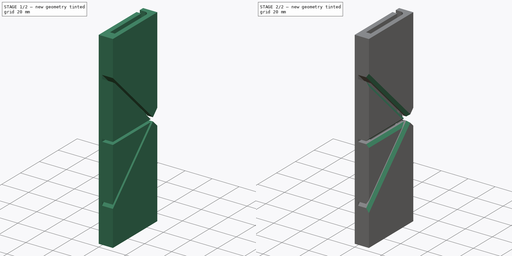
[diagram: build sequence overview — one tinted view per stage of 2, left to right]
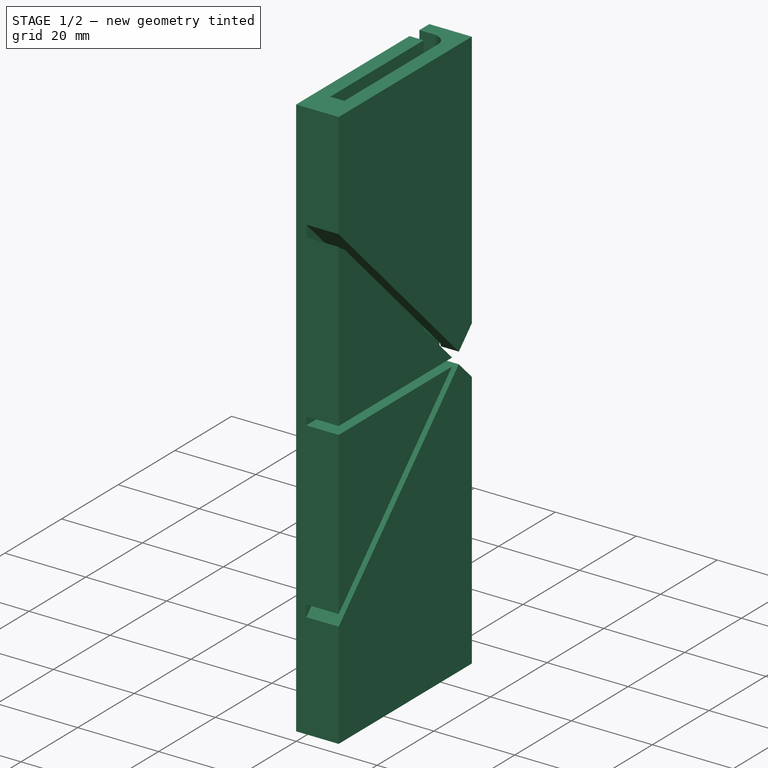
[diagram: stage 1 of 2 — iso view after this stage's code; geometry added in this stage tinted green]
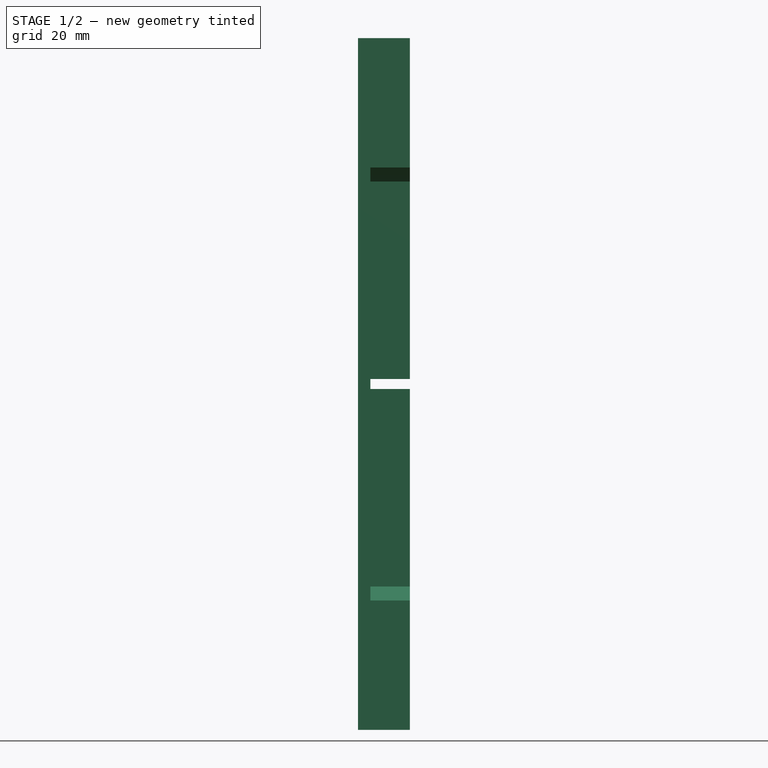
[diagram: stage 1 of 2 — front view after this stage's code; geometry added in this stage tinted green]
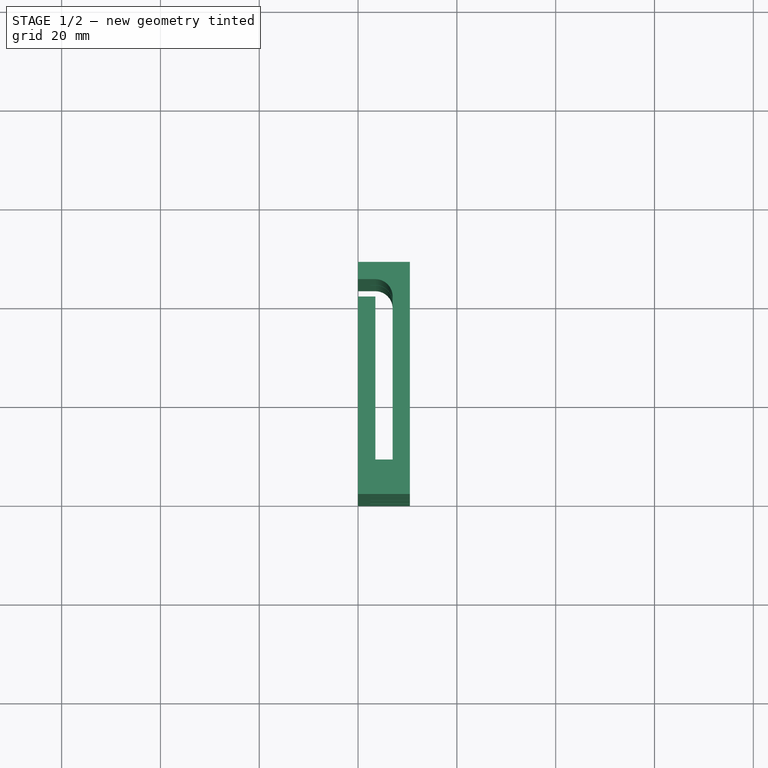
[diagram: stage 1 of 2 — top view after this stage's code; geometry added in this stage tinted green]
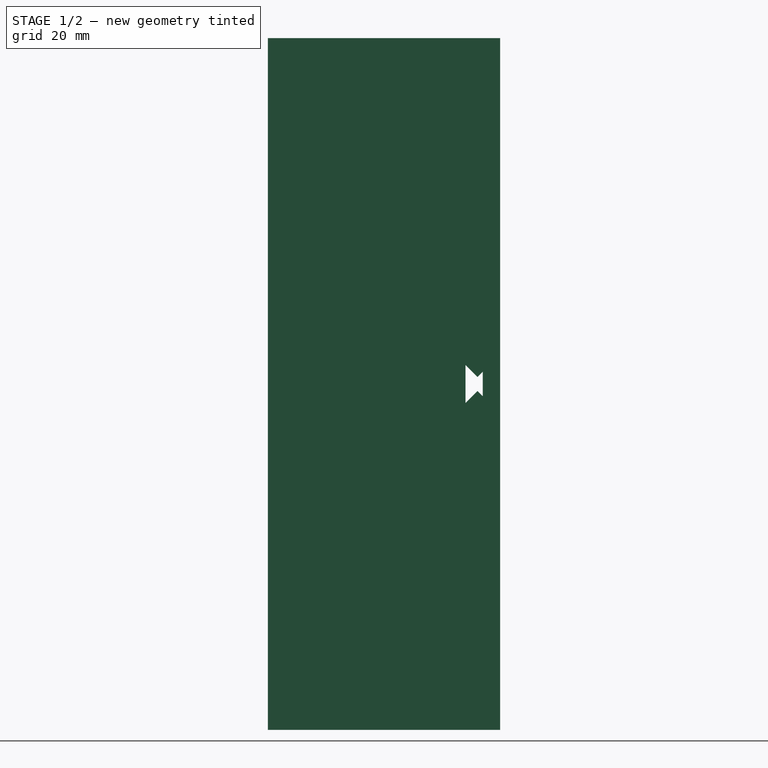
[diagram: stage 1 of 2 — right view after this stage's code; geometry added in this stage tinted green]
FCSTD DOCUMENT  (FreeCAD 0.18R16131 (Git))
Label: CardboardProtectionJig
License: All rights reserved
LicenseURL: http://en.wikipedia.org/wiki/All_rights_reserved
objects: Sketcher::SketchObject×2, PartDesign::Pad×1, PartDesign::Pocket×1, PartDesign::Chamfer×1, PartDesign::Body×1
note: 8 computed .brp shape members not serialized (recipe doc carries the construction recipe); baked Part::Feature solids carry a one-line shape summary decoded from their .brp

FEATURE [Sketcher::SketchObject] Sketch
  MapMode = 5
  Support = -> [XY_Plane]
  sketch-geometry (11):
    g0: LineSegment StartX=0 StartY=0 StartZ=0 EndX=0 EndY=40 EndZ=0
    g1: LineSegment StartX=0 StartY=40 StartZ=0 EndX=3.5 EndY=40 EndZ=0
    g2: LineSegment StartX=3.5 StartY=40 StartZ=0 EndX=3.5 EndY=7 EndZ=0
    g3: LineSegment StartX=3.5 StartY=7 StartZ=0 EndX=7 EndY=7 EndZ=0
    g4: LineSegment StartX=7 StartY=7 StartZ=0 EndX=7 EndY=40 EndZ=0
    g5: LineSegment StartX=10.5 StartY=47 StartZ=0 EndX=10.5 EndY=0 EndZ=0
    g6: LineSegment StartX=10.5 StartY=0 StartZ=0 EndX=0 EndY=0 EndZ=0
    g7: ArcOfCircle CenterX=3.5 CenterY=40 CenterZ=0 NormalX=0 NormalY=0 NormalZ=1 AngleXU=0 Radius=3.5 StartAngle=2e-16 EndAngle=1.5708
    g8: LineSegment StartX=10.5 StartY=47 StartZ=0 EndX=0 EndY=47 EndZ=0
    g9: LineSegment StartX=3.5 StartY=43.5 StartZ=0 EndX=0 EndY=43.5 EndZ=0
    g10: LineSegment StartX=0 StartY=43.5 StartZ=0 EndX=0 EndY=47 EndZ=0
  constraints (30):
    c: Coincident(g0,g-1)
    c: PointOnObject(g0,g-2)
    c: Coincident(g1,g0)
    c: Horizontal(g1)
    c: Coincident(g2,g1)
    c: Vertical(g2)
    c: Coincident(g3,g2)
    c: Coincident(g4,g3)
    c: Vertical(g4)
    c: PointOnObject(g5,g-1)
    c: Vertical(g5)
    c: Coincident(g6,g5)
    c: Coincident(g6,g0)
    c: Horizontal(g3)
    c: DistanceX(g1,g4) = 3.5
    c: DistanceX(g1,g1) = 3.5
    c: DistanceY(g0,g0) = 40
    c: Coincident(g7,g1)
    c: PointOnObject(g8,g-2)
    c: Horizontal(g8)
    c: PointOnObject(g9,g-2)
    c: Horizontal(g9)
    c: Coincident(g10,g9)
    c: Coincident(g10,g8)
    c: DistanceY(g10,g10) = 3.5
    c: Tangent(g9,g7) = -1.5708
    c: Tangent(g7,g4) = -1.5708
    c: Coincident(g5,g8)
    c: DistanceX(g4,g5) = 3.5
    c: DistanceY(g4,g4) = 33
FEATURE [PartDesign::Pad] Pad
  Length = 140
  Length2 = 100
  Midplane = true
  Profile = -> Sketch
  Type = 0
FEATURE [Sketcher::SketchObject] Sketch001
  MapMode = 5
  Placement = pos=(10.5,0,0) rot=(0.57735,0.57735,0.57735;2.0944rad)
  Support = -> [Pad]
  sketch-geometry (15):
    g0: LineSegment StartX=0 StartY=1 StartZ=0 EndX=40 EndY=1 EndZ=0
    g1: LineSegment StartX=40 StartY=1 StartZ=0 EndX=0 EndY=41 EndZ=0
    g2: LineSegment StartX=0 StartY=-1 StartZ=0 EndX=40 EndY=-1 EndZ=0
    g3: LineSegment StartX=40 StartY=-1 StartZ=0 EndX=0 EndY=-41 EndZ=0
    g4: LineSegment StartX=0 StartY=43.8284 StartZ=0 EndX=42.4142 EndY=1.41421 EndZ=0
    g5: LineSegment StartX=42.4142 StartY=1.41421 StartZ=0 EndX=62.4142 EndY=21.4142 EndZ=0
    g6: LineSegment StartX=62.4142 StartY=21.4142 StartZ=0 EndX=62.4142 EndY=-21.4142 EndZ=0
    g7: LineSegment StartX=62.4142 StartY=-21.4142 StartZ=0 EndX=42.4142 EndY=-1.41421 EndZ=0
    g8: LineSegment StartX=42.4142 StartY=-1.41421 StartZ=0 EndX=0 EndY=-43.8284 EndZ=0
    g9: LineSegment StartX=0 StartY=-41 StartZ=0 EndX=0 EndY=-43.8284 EndZ=0
    g10: LineSegment StartX=0 StartY=43.8284 StartZ=0 EndX=0 EndY=41 EndZ=0
    g11: LineSegment [constr] StartX=40 StartY=-1 StartZ=0 EndX=42.4142 EndY=1.41421 EndZ=0
    g12: LineSegment [constr] StartX=40 StartY=-1 StartZ=0 EndX=40 EndY=1 EndZ=0
    g13: LineSegment [constr] StartX=42.4142 StartY=-1.41421 StartZ=0 EndX=40 EndY=1 EndZ=0
    g14: LineSegment StartX=0 StartY=1 StartZ=0 EndX=0 EndY=-1 EndZ=0
  constraints (42):
    c: PointOnObject(g0,g-2)
    c: Horizontal(g0)
    c: Coincident(g1,g0)
    c: PointOnObject(g1,g-2)
    c: PointOnObject(g2,g-2)
    c: Horizontal(g2)
    c: Coincident(g3,g2)
    c: PointOnObject(g3,g-2)
    c: PointOnObject(g4,g-2)
    c: Coincident(g5,g4)
    c: Coincident(g6,g5)
    c: Coincident(g7,g6)
    c: Coincident(g8,g7)
    c: PointOnObject(g8,g-2)
    c: Coincident(g9,g3)
    c: Coincident(g9,g8)
    c: Coincident(g10,g4)
    c: Coincident(g10,g1)
    c: Angle(g1,g0) = 0.785398
    c: Parallel(g4,g1)
    c: Parallel(g1,g7)
    c: Perpendicular(g3,g1)
    c: Parallel(g3,g8)
    c: Parallel(g8,g5)
    c: Vertical(g6)
    c: DistanceY(g-1,g0) = 1
    c: DistanceY(g2,g-1) = 1
    c: Coincident(g11,g2)
    c: Coincident(g11,g4)
    c: Parallel(g11,g3)
    c: Coincident(g12,g2)
    c: Vertical(g12)
    c: Coincident(g12,g0)
    c: Coincident(g13,g7)
    c: Coincident(g13,g0)
    c: Parallel(g13,g1)
    c: Equal(g13,g11)
    c: Distance(g0,g4) = 2
    c: DistanceY(g4,g5) = 20
    c: DistanceX(g0,g0) = 40
    c: Coincident(g14,g0)
    c: Coincident(g14,g2)
FEATURE [PartDesign::Pocket] Pocket
  BaseFeature = -> Pad
  Length = 8
  Length2 = 100
  Profile = -> Sketch001
  Refine = true
  Type = 0
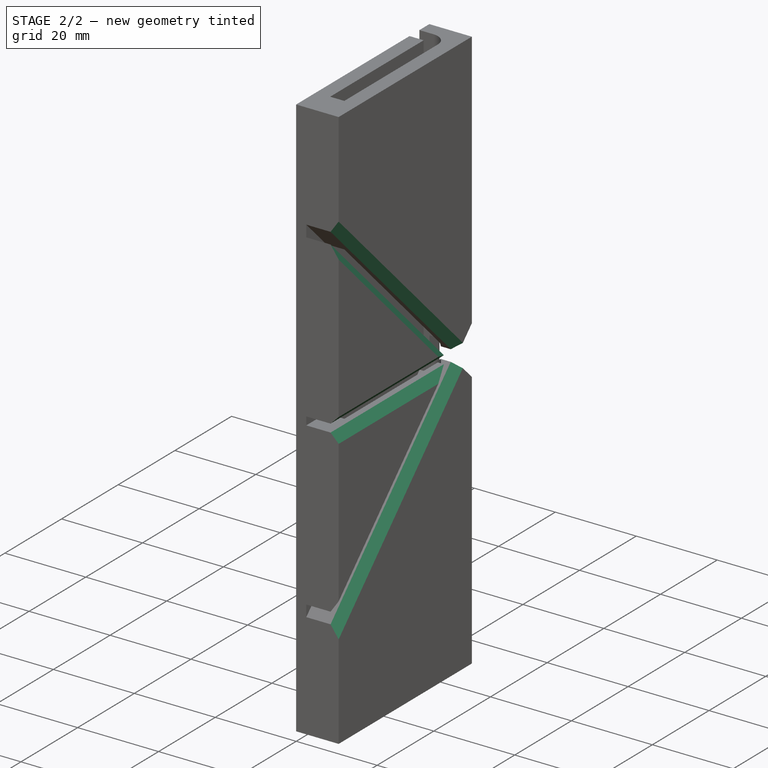
[diagram: stage 2 of 2 — iso view after this stage's code; geometry added in this stage tinted green]
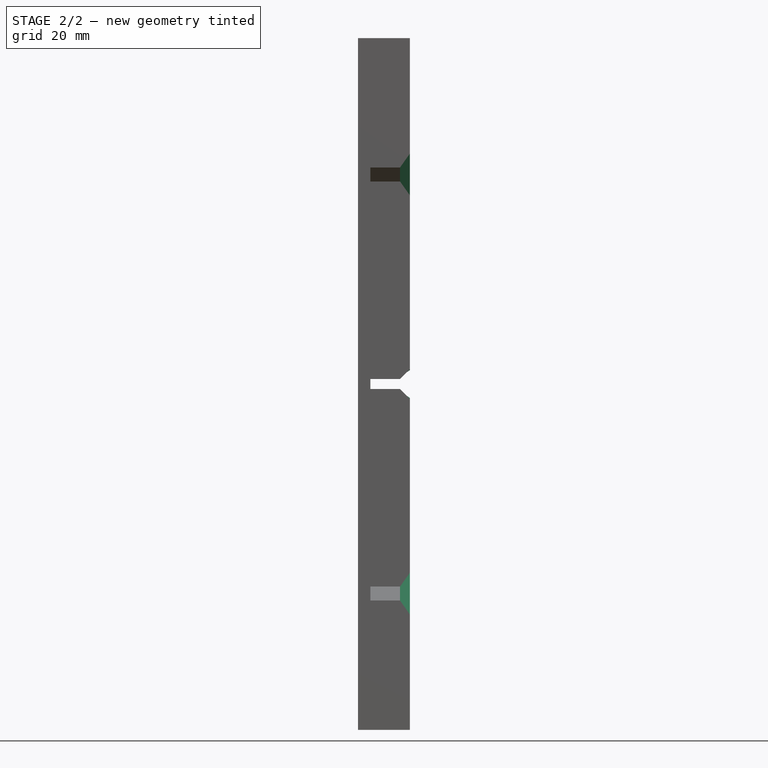
[diagram: stage 2 of 2 — front view after this stage's code; geometry added in this stage tinted green]
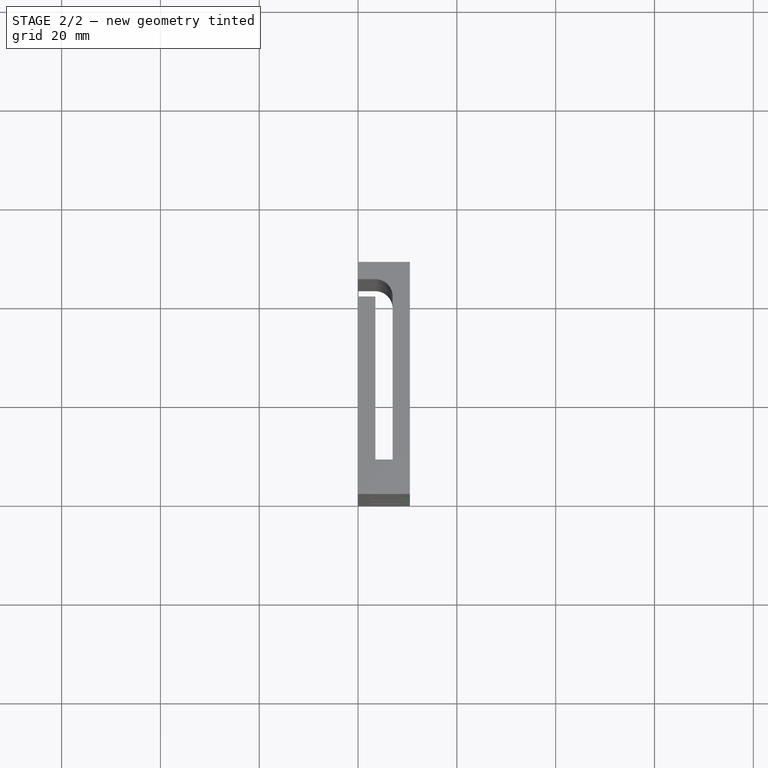
[diagram: stage 2 of 2 — top view after this stage's code; geometry added in this stage tinted green]
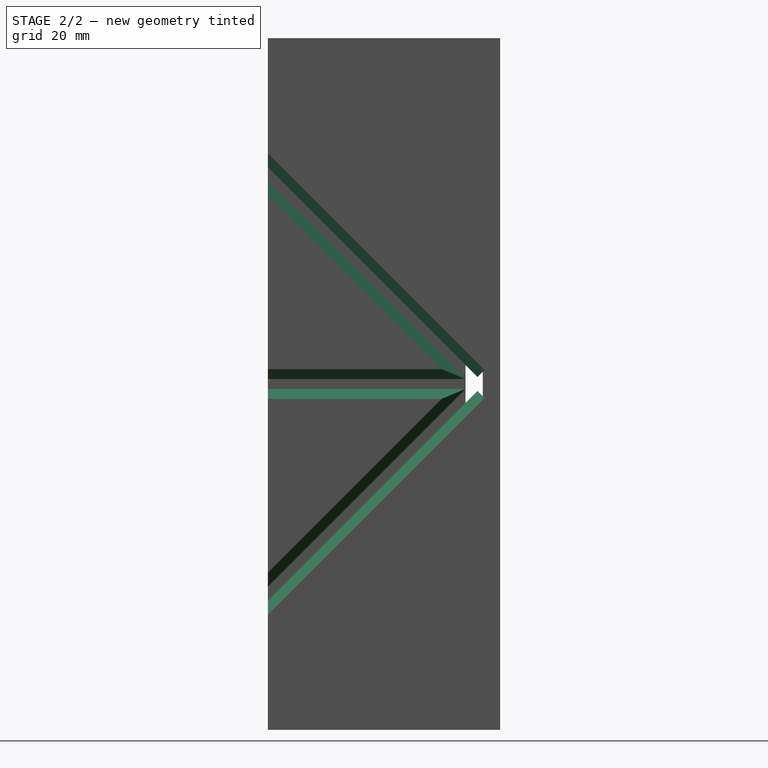
[diagram: stage 2 of 2 — right view after this stage's code; geometry added in this stage tinted green]
FEATURE [PartDesign::Chamfer] Chamfer
  Base = -> Pocket [Edge85,Edge91,Edge97,Edge3,Edge79,Edge71]
  BaseFeature = -> Pocket
  Size = 2
FEATURE [PartDesign::Body] Body
  Group = -> [Sketch,Pad,Sketch001,Pocket,Chamfer]
  Origin = -> Origin
  Tip = -> Chamfer
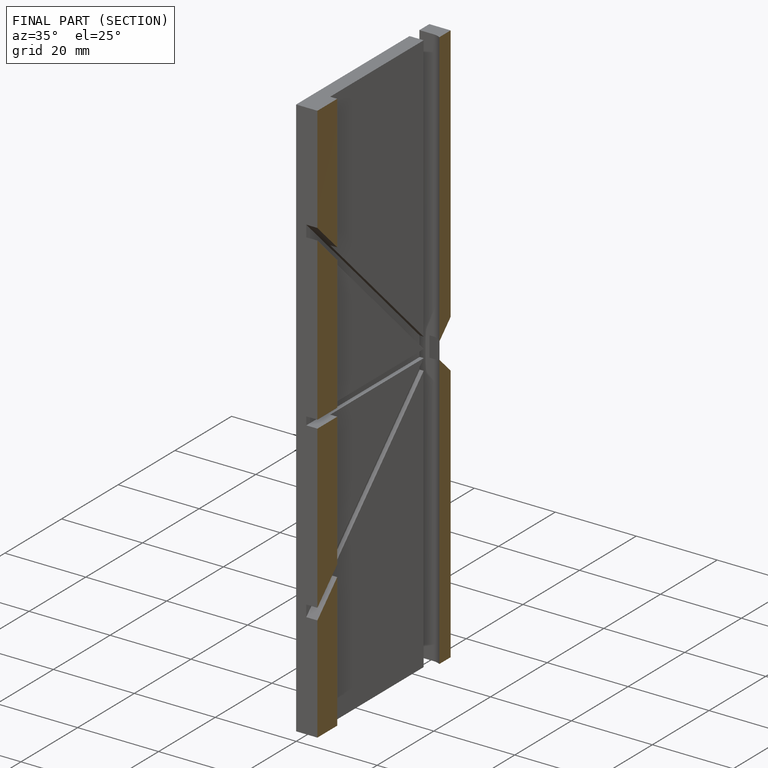
[diagram: finished part — half-section view (interior)]
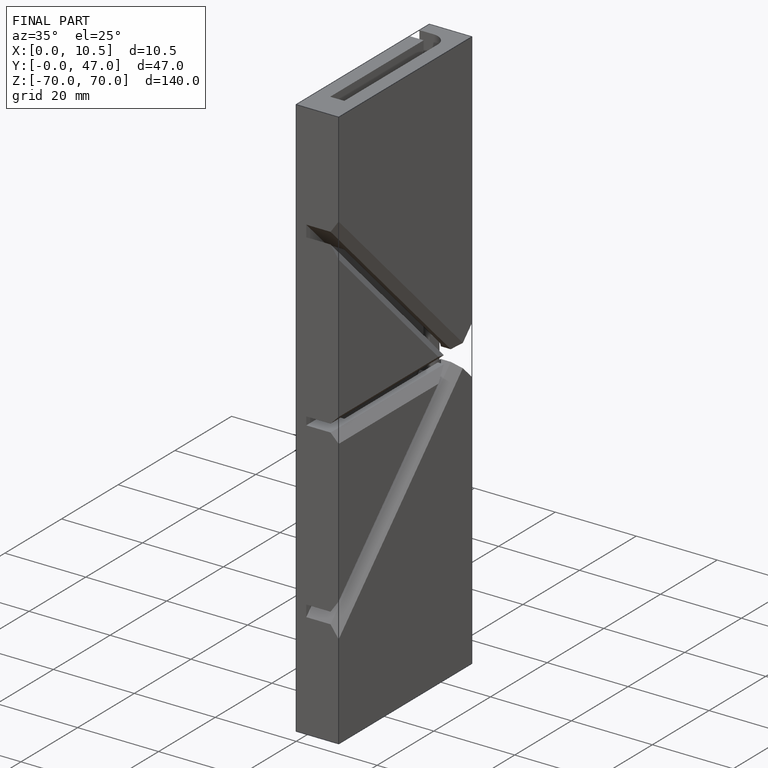
[diagram: finished part — iso view with bounding-box wireframe]
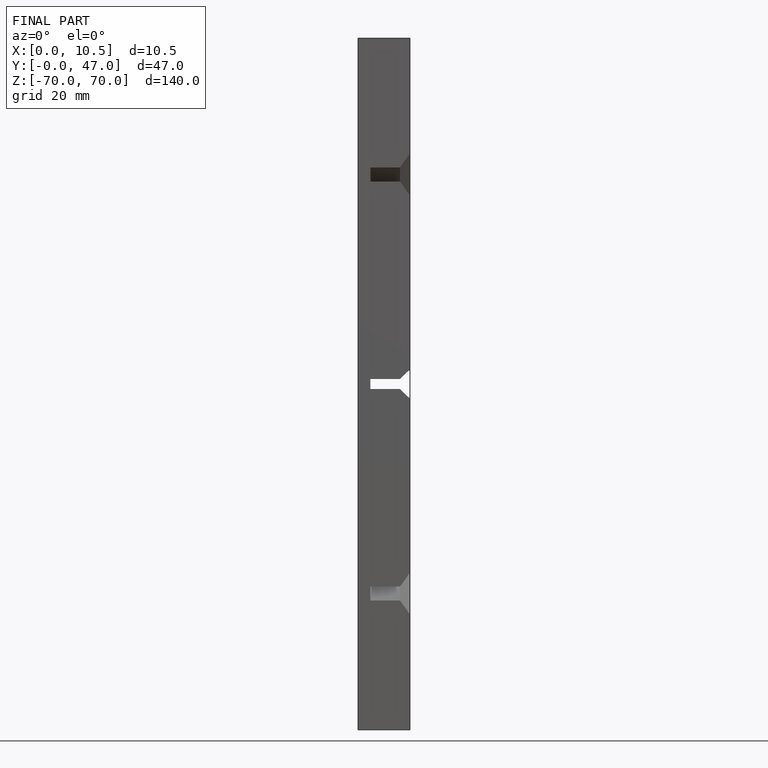
[diagram: finished part — front view with bounding-box wireframe]
